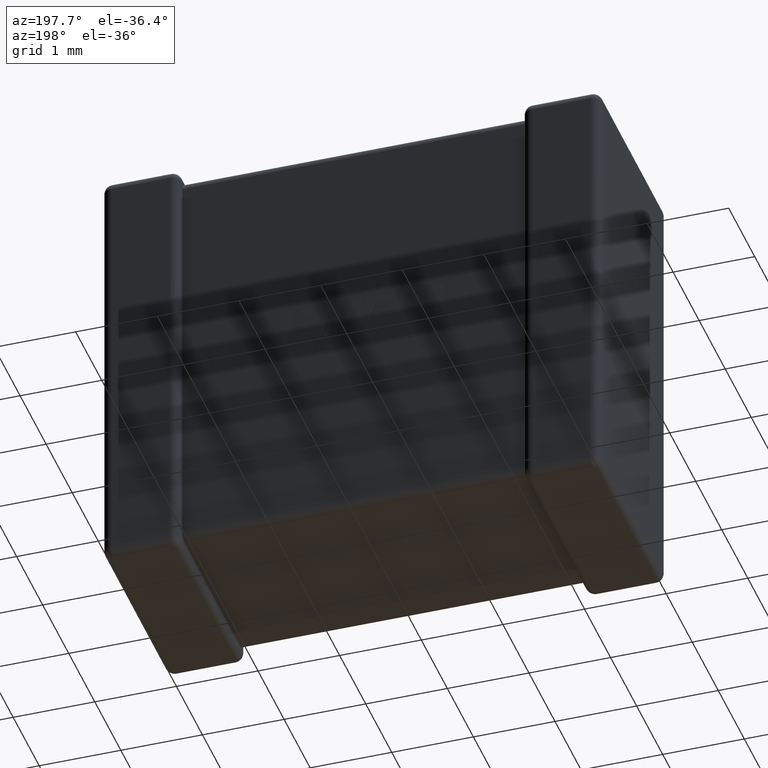
[diagram: clean part render]
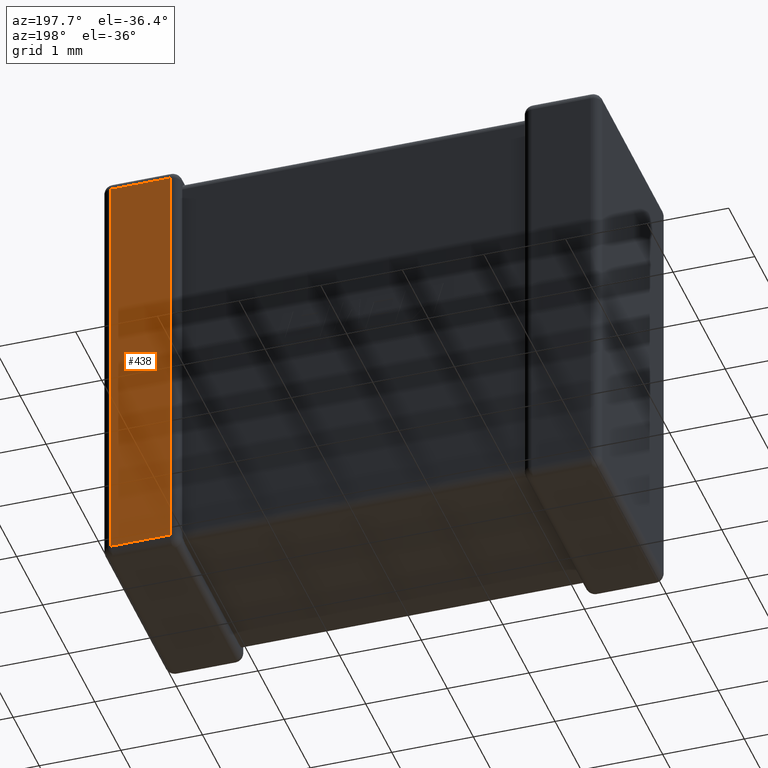
[diagram: same view with one face highlighted and labeled with its STEP entity id]
A machine part, auxiliary view. The second image highlights one B-rep face of the part: STEP entity #438.
In plain terms, the highlighted planar face has unit normal (0, -1, 0).
Its self-contained STEP definition (entity closure, byte-faithful):
#188 = DIRECTION ( 'NONE',  ( -0.0000000000000000000, 0.0000000000000000000, 1.000000000000000000 ) ) ;
#426 = AXIS2_PLACEMENT_3D ( 'NONE', #798, #2246, #789 ) ;
#438 = ADVANCED_FACE ( 'NONE', ( #2297 ), #4402, .F. ) ;
#479 = ORIENTED_EDGE ( 'NONE', *, *, #4411, .T. ) ;
#586 = CARTESIAN_POINT ( 'NONE',  ( 5.262319999999999900, 2.549999999999999800, -0.1123199999999999900 ) ) ;
#739 = EDGE_LOOP ( 'NONE', ( #3231, #1758, #479, #4421 ) ) ;
#773 = CARTESIAN_POINT ( 'NONE',  ( 5.262319999999999900, 2.549999999999999800, -5.287679999999999900 ) ) ;
#789 = DIRECTION ( 'NONE',  ( 0.0000000000000000000, -0.0000000000000000000, -1.000000000000000000 ) ) ;
#792 = VECTOR ( 'NONE', #3358, 1000.000000000000000 ) ;
#798 = CARTESIAN_POINT ( 'NONE',  ( 6.100000000000000500, 2.549999999999999800, 0.0000000000000000000 ) ) ;
#813 = DIRECTION ( 'NONE',  ( 1.000000000000000000, -0.0000000000000000000, -0.0000000000000000000 ) ) ;
#853 = VECTOR ( 'NONE', #188, 1000.000000000000000 ) ;
#910 = LINE ( 'NONE', #1009, #4475 ) ;
#1009 = CARTESIAN_POINT ( 'NONE',  ( 6.100000000000000500, 2.549999999999999800, -5.287679999999999900 ) ) ;
#1130 = CARTESIAN_POINT ( 'NONE',  ( 6.100000000000000500, 2.549999999999999800, -0.1123199999999999900 ) ) ;
#1335 = CARTESIAN_POINT ( 'NONE',  ( 5.987680000000000100, 2.549999999999999800, -0.1123199999999999900 ) ) ;
#1436 = CARTESIAN_POINT ( 'NONE',  ( 5.987680000000000100, 2.549999999999999800, -5.287679999999999900 ) ) ;
#1508 = VERTEX_POINT ( 'NONE', #1436 ) ;
#1754 = VERTEX_POINT ( 'NONE', #586 ) ;
#1758 = ORIENTED_EDGE ( 'NONE', *, *, #3161, .T. ) ;
#1764 = LINE ( 'NONE', #2302, #853 ) ;
#1926 = VERTEX_POINT ( 'NONE', #1335 ) ;
#2047 = LINE ( 'NONE', #4455, #792 ) ;
#2153 = EDGE_CURVE ( 'NONE', #1754, #1926, #3864, .T. ) ;
#2203 = VERTEX_POINT ( 'NONE', #773 ) ;
#2246 = DIRECTION ( 'NONE',  ( 0.0000000000000000000, -1.000000000000000000, 0.0000000000000000000 ) ) ;
#2297 = FACE_OUTER_BOUND ( 'NONE', #739, .T. ) ;
#2302 = CARTESIAN_POINT ( 'NONE',  ( 5.262319999999999900, 2.549999999999999800, 0.0000000000000000000 ) ) ;
#2304 = EDGE_CURVE ( 'NONE', #2203, #1754, #1764, .T. ) ;
#2782 = DIRECTION ( 'NONE',  ( -1.000000000000000000, 0.0000000000000000000, 0.0000000000000000000 ) ) ;
#2889 = VECTOR ( 'NONE', #813, 1000.000000000000000 ) ;
#3161 = EDGE_CURVE ( 'NONE', #1926, #1508, #2047, .T. ) ;
#3231 = ORIENTED_EDGE ( 'NONE', *, *, #2153, .T. ) ;
#3358 = DIRECTION ( 'NONE',  ( -0.0000000000000000000, -0.0000000000000000000, -1.000000000000000000 ) ) ;
#3864 = LINE ( 'NONE', #1130, #2889 ) ;
#4402 = PLANE ( 'NONE',  #426 ) ;
#4411 = EDGE_CURVE ( 'NONE', #1508, #2203, #910, .T. ) ;
#4421 = ORIENTED_EDGE ( 'NONE', *, *, #2304, .T. ) ;
#4455 = CARTESIAN_POINT ( 'NONE',  ( 5.987680000000000100, 2.549999999999999800, 0.0000000000000000000 ) ) ;
#4475 = VECTOR ( 'NONE', #2782, 1000.000000000000000 ) ;